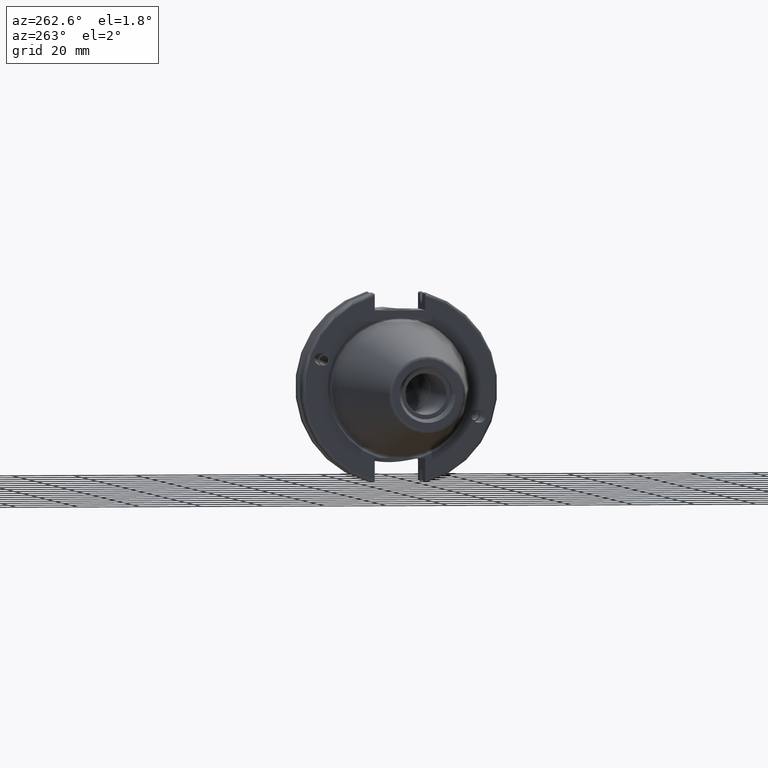
[diagram: clean part render]
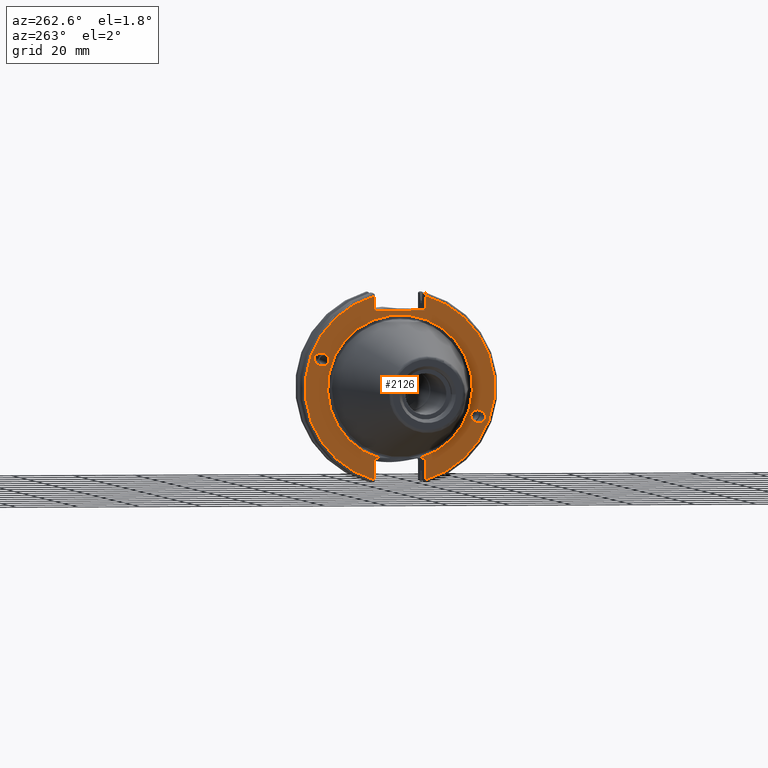
[diagram: same view with one face highlighted and labeled with its STEP entity id]
A machine part, auxiliary view. The second image highlights one B-rep face of the part: STEP entity #2126.
In plain terms, the highlighted planar face has unit normal (-1, 0, 0).
Its self-contained STEP definition (entity closure, byte-faithful):
#41=ELLIPSE('',#2342,2.4415491775229,1.99999999999999);
#50=ELLIPSE('',#2390,2.4415491775229,1.99999999999999);
#126=FACE_BOUND('',#561,.T.);
#127=FACE_BOUND('',#562,.T.);
#149=PLANE('',#2407);
#224=LINE('',#3971,#317);
#228=LINE('',#4017,#321);
#236=LINE('',#4053,#329);
#238=LINE('',#4077,#331);
#239=LINE('',#4081,#332);
#240=LINE('',#4083,#333);
#241=LINE('',#4086,#334);
#317=VECTOR('',#2973,10.);
#321=VECTOR('',#2985,10.);
#329=VECTOR('',#2995,10.);
#331=VECTOR('',#3005,10.);
#332=VECTOR('',#3008,10.);
#333=VECTOR('',#3009,10.);
#334=VECTOR('',#3012,10.);
#445=FACE_OUTER_BOUND('',#560,.T.);
#560=EDGE_LOOP('',(#1835,#1836,#1837,#1838,#1839,#1840,#1841,#1842,#1843,
#1844));
#561=EDGE_LOOP('',(#1845));
#562=EDGE_LOOP('',(#1846));
#739=CIRCLE('',#2406,30.75);
#740=CIRCLE('',#2408,30.75);
#741=CIRCLE('',#2409,23.5);
#903=VERTEX_POINT('',#3691);
#948=VERTEX_POINT('',#3902);
#961=VERTEX_POINT('',#3963);
#962=VERTEX_POINT('',#3970);
#968=VERTEX_POINT('',#4014);
#969=VERTEX_POINT('',#4016);
#977=VERTEX_POINT('',#4045);
#978=VERTEX_POINT('',#4052);
#981=VERTEX_POINT('',#4078);
#982=VERTEX_POINT('',#4080);
#983=VERTEX_POINT('',#4082);
#984=VERTEX_POINT('',#4084);
#1183=EDGE_CURVE('',#903,#903,#41,.T.);
#1244=EDGE_CURVE('',#948,#948,#50,.T.);
#1262=EDGE_CURVE('',#962,#961,#224,.T.);
#1272=EDGE_CURVE('',#969,#968,#228,.T.);
#1284=EDGE_CURVE('',#978,#977,#236,.T.);
#1289=EDGE_CURVE('',#969,#977,#739,.T.);
#1290=EDGE_CURVE('',#968,#962,#238,.T.);
#1291=EDGE_CURVE('',#981,#961,#740,.T.);
#1292=EDGE_CURVE('',#981,#982,#239,.T.);
#1293=EDGE_CURVE('',#982,#983,#240,.T.);
#1294=EDGE_CURVE('',#983,#984,#741,.T.);
#1295=EDGE_CURVE('',#984,#978,#241,.T.);
#1835=ORIENTED_EDGE('',*,*,#1289,.F.);
#1836=ORIENTED_EDGE('',*,*,#1272,.T.);
#1837=ORIENTED_EDGE('',*,*,#1290,.T.);
#1838=ORIENTED_EDGE('',*,*,#1262,.T.);
#1839=ORIENTED_EDGE('',*,*,#1291,.F.);
#1840=ORIENTED_EDGE('',*,*,#1292,.T.);
#1841=ORIENTED_EDGE('',*,*,#1293,.T.);
#1842=ORIENTED_EDGE('',*,*,#1294,.T.);
#1843=ORIENTED_EDGE('',*,*,#1295,.T.);
#1844=ORIENTED_EDGE('',*,*,#1284,.T.);
#1845=ORIENTED_EDGE('',*,*,#1183,.T.);
#1846=ORIENTED_EDGE('',*,*,#1244,.T.);
#2126=ADVANCED_FACE('',(#445,#126,#127),#149,.T.);
#2342=AXIS2_PLACEMENT_3D('',#3693,#2836,#2837);
#2390=AXIS2_PLACEMENT_3D('',#3904,#2948,#2949);
#2406=AXIS2_PLACEMENT_3D('',#4075,#3001,#3002);
#2407=AXIS2_PLACEMENT_3D('',#4076,#3003,#3004);
#2408=AXIS2_PLACEMENT_3D('',#4079,#3006,#3007);
#2409=AXIS2_PLACEMENT_3D('',#4085,#3010,#3011);
#2836=DIRECTION('center_axis',(1.,0.,0.));
#2837=DIRECTION('ref_axis',(0.,-0.939692620785908,-0.342020143325669));
#2948=DIRECTION('center_axis',(1.,0.,0.));
#2949=DIRECTION('ref_axis',(0.,0.939692620785908,0.342020143325669));
#2973=DIRECTION('',(0.,0.,1.));
#2985=DIRECTION('',(0.,0.,-1.));
#2995=DIRECTION('',(0.,0.,-1.));
#3001=DIRECTION('center_axis',(1.,0.,0.));
#3002=DIRECTION('ref_axis',(0.,-1.,1.60812264967664E-16));
#3003=DIRECTION('center_axis',(-1.,0.,0.));
#3004=DIRECTION('ref_axis',(0.,0.,1.));
#3005=DIRECTION('',(0.,1.,0.));
#3006=DIRECTION('center_axis',(1.,0.,0.));
#3007=DIRECTION('ref_axis',(0.,1.,1.60812264967664E-16));
#3008=DIRECTION('',(0.,0.,1.));
#3009=DIRECTION('',(0.,-1.,0.));
#3010=DIRECTION('center_axis',(1.,0.,0.));
#3011=DIRECTION('ref_axis',(0.,0.,-1.));
#3012=DIRECTION('',(0.,-1.,0.));
#3691=CARTESIAN_POINT('',(1.,-23.0773950158154,-8.39948487016));
#3693=CARTESIAN_POINT('Origin',(1.,-25.3717007612195,-9.23454386979305));
#3902=CARTESIAN_POINT('',(1.,23.0773950158154,8.39948487016001));
#3904=CARTESIAN_POINT('Origin',(1.,25.3717007612195,9.23454386979306));
#3963=CARTESIAN_POINT('',(1.,8.19,29.6392712461019));
#3970=CARTESIAN_POINT('',(1.,8.19,25.));
#3971=CARTESIAN_POINT('',(1.,8.19,12.5));
#4014=CARTESIAN_POINT('',(1.,-8.19,25.));
#4016=CARTESIAN_POINT('',(1.,-8.18999999999999,29.6392712461019));
#4017=CARTESIAN_POINT('',(1.,-8.18999999999999,12.5));
#4045=CARTESIAN_POINT('',(1.,-8.19,-29.6392712461019));
#4052=CARTESIAN_POINT('',(1.,-8.19,-22.6));
#4053=CARTESIAN_POINT('',(1.,-8.19,-11.3));
#4075=CARTESIAN_POINT('Origin',(1.,0.,0.));
#4076=CARTESIAN_POINT('Origin',(1.,31.75,0.));
#4077=CARTESIAN_POINT('',(1.,15.875,25.));
#4078=CARTESIAN_POINT('',(1.,8.18999999999999,-29.6392712461019));
#4079=CARTESIAN_POINT('Origin',(1.,0.,0.));
#4080=CARTESIAN_POINT('',(0.999999999999998,8.19,-22.6));
#4081=CARTESIAN_POINT('',(1.,8.18999999999999,-11.3));
#4082=CARTESIAN_POINT('',(0.999999999999997,6.4412731660752,-22.6));
#4083=CARTESIAN_POINT('',(1.,15.875,-22.6));
#4084=CARTESIAN_POINT('',(1.,-6.44127316607517,-22.6));
#4085=CARTESIAN_POINT('Origin',(0.999999999999996,0.,0.));
#4086=CARTESIAN_POINT('',(1.,15.875,-22.6));